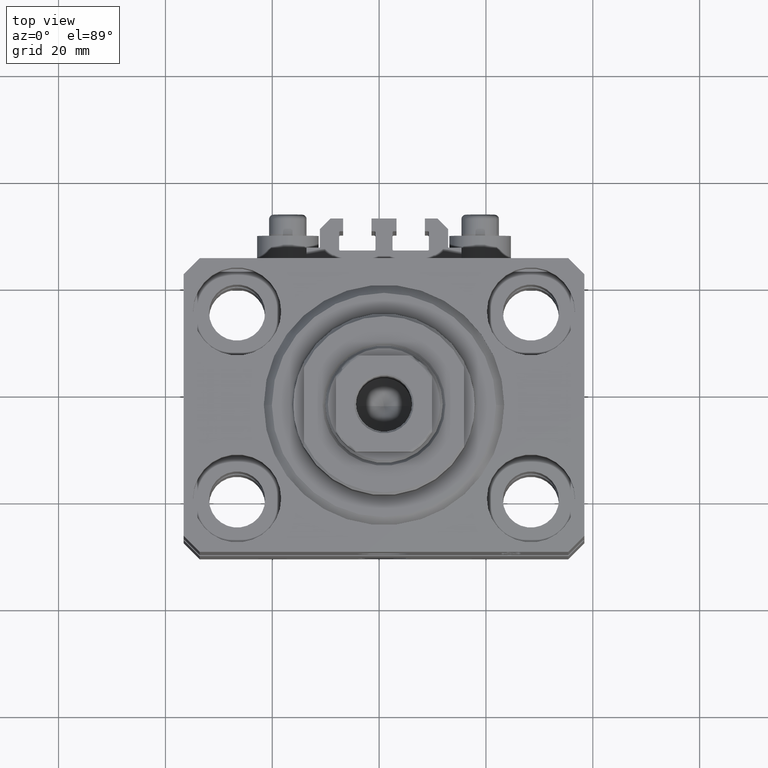
[diagram: clean part render]
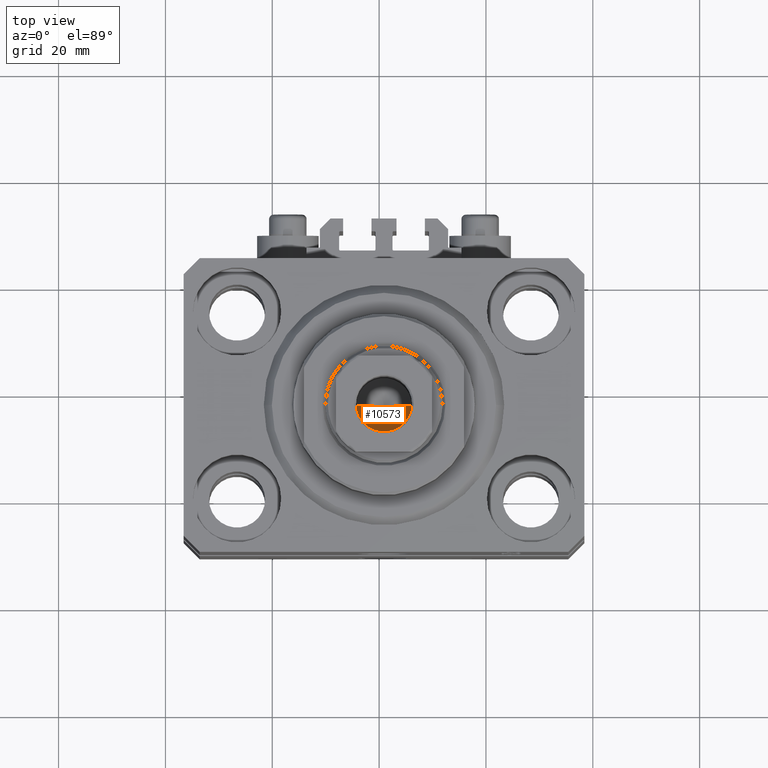
[diagram: same view with one face highlighted and labeled with its STEP entity id]
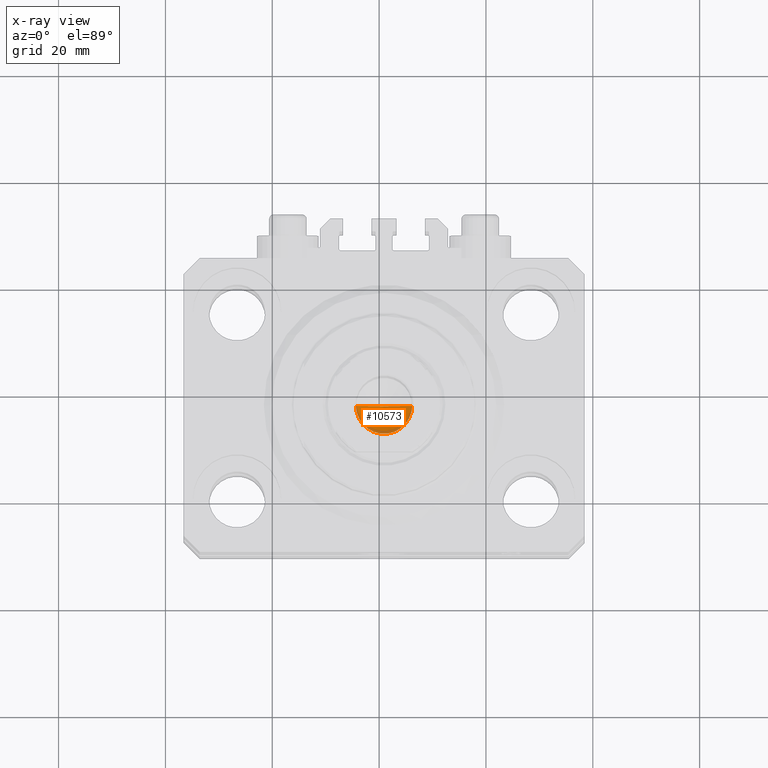
[diagram: x-ray of the same camera — body ghosted, the highlighted face saturated]
A machine part, top view. The second image highlights one B-rep face of the part: STEP entity #10573.
The next image is the same camera in x-ray: the body ghosted, the highlighted face saturated — about 11% of this face is hidden behind the body in this view.
In plain terms, the highlighted conical surface has half-angle 59 deg.
Its self-contained STEP definition (entity closure, byte-faithful):
#3727 = ORIENTED_EDGE ( 'NONE', *, *, #41908, .T. ) ;
#5591 = VERTEX_POINT ( 'NONE', #20121 ) ;
#7037 = FACE_OUTER_BOUND ( 'NONE', #34596, .T. ) ;
#9190 = LINE ( 'NONE', #45443, #23242 ) ;
#9463 = AXIS2_PLACEMENT_3D ( 'NONE', #13430, #21020, #27895 ) ;
#9724 = DIRECTION ( 'NONE',  ( 0.8571673007021118895, 0.000000000000000000, 0.5150380749100549327 ) ) ;
#10573 = ADVANCED_FACE ( 'NONE', ( #7037 ), #23107, .F. ) ;
#13430 = CARTESIAN_POINT ( 'NONE',  ( 0.000000000000000000, 0.000000000000000000, 60.10000000000000853 ) ) ;
#16200 = CARTESIAN_POINT ( 'NONE',  ( 5.249999999999994671, 0.000000000000000000, 60.10000000000000853 ) ) ;
#19106 = EDGE_CURVE ( 'NONE', #27547, #5591, #9190, .T. ) ;
#20121 = CARTESIAN_POINT ( 'NONE',  ( -5.249999999999994671, 6.429395695523597250E-16, 60.10000000000000853 ) ) ;
#21020 = DIRECTION ( 'NONE',  ( -0.000000000000000000, -0.000000000000000000, 1.000000000000000000 ) ) ;
#21478 = CARTESIAN_POINT ( 'NONE',  ( 0.000000000000000000, 0.000000000000000000, 60.10000000000000853 ) ) ;
#23107 = CONICAL_SURFACE ( 'NONE', #35217, 5.249999999999994671, 1.029744258676653645 ) ;
#23242 = VECTOR ( 'NONE', #23623, 1000.000000000000000 ) ;
#23623 = DIRECTION ( 'NONE',  ( -0.8571673007021118895, 1.049727191138618079E-16, 0.5150380749100549327 ) ) ;
#26135 = ORIENTED_EDGE ( 'NONE', *, *, #35341, .F. ) ;
#27547 = VERTEX_POINT ( 'NONE', #44264 ) ;
#27895 = DIRECTION ( 'NONE',  ( 1.000000000000000000, 0.000000000000000000, 0.000000000000000000 ) ) ;
#29881 = CIRCLE ( 'NONE', #9463, 5.249999999999994671 ) ;
#31043 = LINE ( 'NONE', #45507, #35093 ) ;
#34596 = EDGE_LOOP ( 'NONE', ( #26135, #37717, #3727 ) ) ;
#35093 = VECTOR ( 'NONE', #9724, 1000.000000000000000 ) ;
#35217 = AXIS2_PLACEMENT_3D ( 'NONE', #21478, #44217, #40420 ) ;
#35341 = EDGE_CURVE ( 'NONE', #27547, #36795, #31043, .T. ) ;
#36795 = VERTEX_POINT ( 'NONE', #16200 ) ;
#37717 = ORIENTED_EDGE ( 'NONE', *, *, #19106, .T. ) ;
#40420 = DIRECTION ( 'NONE',  ( 1.000000000000000000, 0.000000000000000000, 0.000000000000000000 ) ) ;
#41908 = EDGE_CURVE ( 'NONE', #5591, #36795, #29881, .T. ) ;
#44217 = DIRECTION ( 'NONE',  ( -0.000000000000000000, -0.000000000000000000, 1.000000000000000000 ) ) ;
#44264 = CARTESIAN_POINT ( 'NONE',  ( -6.783656367213677939E-15, 0.000000000000000000, 56.94548175010531565 ) ) ;
#45443 = CARTESIAN_POINT ( 'NONE',  ( -5.249999999999994671, 6.429395695523597250E-16, 60.10000000000000853 ) ) ;
#45507 = CARTESIAN_POINT ( 'NONE',  ( 5.249999999999994671, 0.000000000000000000, 60.10000000000000853 ) ) ;